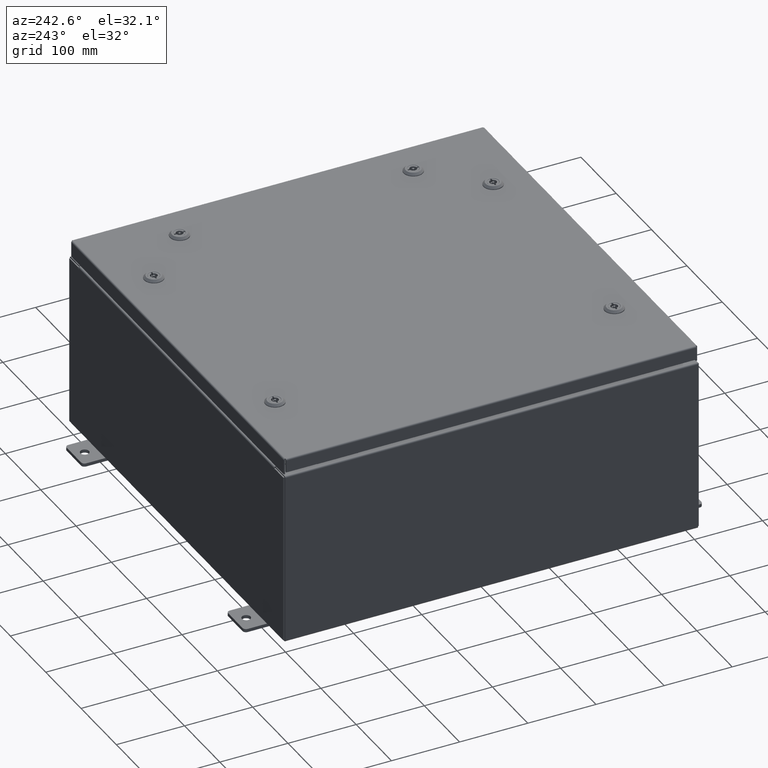
[diagram: clean part render]
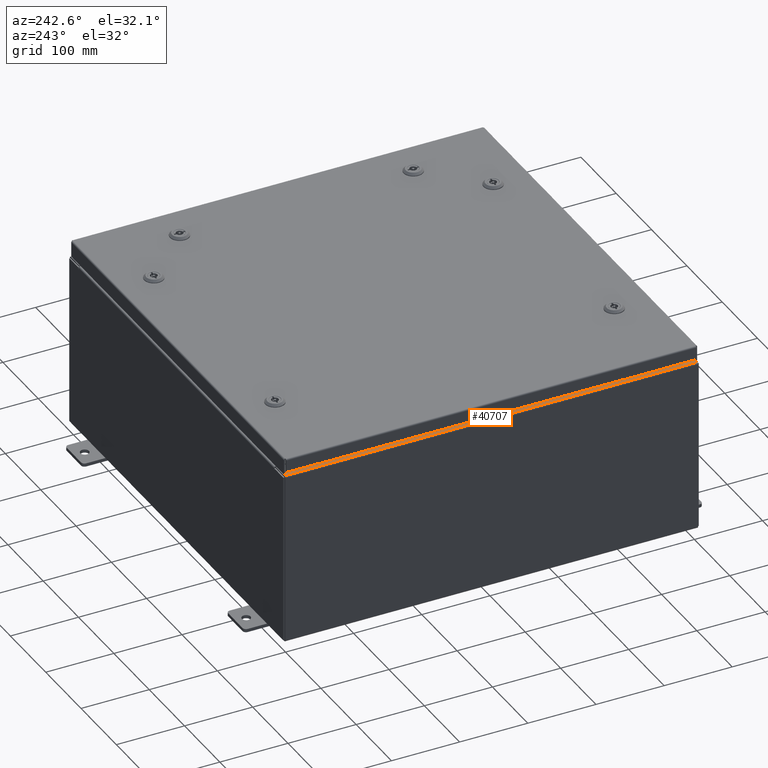
[diagram: same view with one face highlighted and labeled with its STEP entity id]
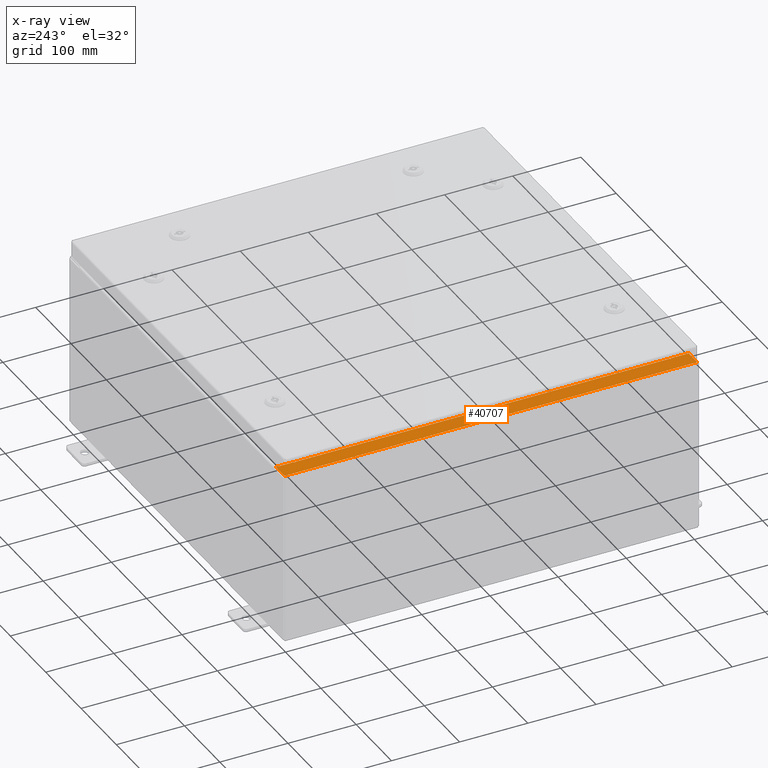
[diagram: x-ray of the same camera — body ghosted, the highlighted face saturated]
A machine part, auxiliary view. The second image highlights one B-rep face of the part: STEP entity #40707.
The next image is the same camera in x-ray: the body ghosted, the highlighted face saturated — about 0% of this face is hidden behind the body in this view.
In plain terms, the highlighted planar face has unit normal (0, 0, -1).
Its self-contained STEP definition (entity closure, byte-faithful):
#17 = AXIS2_PLACEMENT_3D ( 'NONE', #16222, #50489, #21159 ) ;
#266 = CARTESIAN_POINT ( 'NONE',  ( -11.91230000000003700, 11.92529999999999800, 9.925299999999998200 ) ) ;
#984 = VECTOR ( 'NONE', #26434, 39.37007874015748100 ) ;
#1341 = DIRECTION ( 'NONE',  ( -1.000000000000000000, 0.0000000000000000000, 0.0000000000000000000 ) ) ;
#2363 = EDGE_CURVE ( 'NONE', #17779, #60403, #29248, .T. ) ;
#3196 = CARTESIAN_POINT ( 'NONE',  ( -8.919697074175553800E-014, 0.0000000000000000000, 9.925300000000104800 ) ) ;
#3323 = VECTOR ( 'NONE', #40774, 39.37007874015748100 ) ;
#3886 = DIRECTION ( 'NONE',  ( -1.000000000000000000, -4.340572780399910900E-014, 0.0000000000000000000 ) ) ;
#4119 = VECTOR ( 'NONE', #3886, 39.37007874015748100 ) ;
#4289 = CARTESIAN_POINT ( 'NONE',  ( -11.00005000000003900, 10.84374999999999800, 9.925300000000007100 ) ) ;
#4488 = ORIENTED_EDGE ( 'NONE', *, *, #22998, .F. ) ;
#5172 = EDGE_CURVE ( 'NONE', #21323, #18337, #38975, .T. ) ;
#5637 = ORIENTED_EDGE ( 'NONE', *, *, #24836, .F. ) ;
#6042 = DIRECTION ( 'NONE',  ( -1.000000000000000000, -2.052683231367953500E-031, -8.960551024729027700E-015 ) ) ;
#6254 = DIRECTION ( 'NONE',  ( -8.960551024729027700E-015, -0.0000000000000000000, 1.000000000000000000 ) ) ;
#6649 = CARTESIAN_POINT ( 'NONE',  ( -8.919697074175553800E-014, -11.92530000000000000, 9.925300000000104800 ) ) ;
#10707 = VECTOR ( 'NONE', #63411, 39.37007874015748100 ) ;
#11228 = ORIENTED_EDGE ( 'NONE', *, *, #5172, .T. ) ;
#11255 = VERTEX_POINT ( 'NONE', #266 ) ;
#11467 = CARTESIAN_POINT ( 'NONE',  ( -11.91230000000003700, 11.92529999999999800, 9.925299999999998200 ) ) ;
#12405 = EDGE_CURVE ( 'NONE', #32570, #47745, #27171, .T. ) ;
#12605 = ORIENTED_EDGE ( 'NONE', *, *, #2363, .T. ) ;
#13538 = CARTESIAN_POINT ( 'NONE',  ( -11.00005000000003900, 10.84374999999999800, 9.925300000000007100 ) ) ;
#14112 = LINE ( 'NONE', #6649, #984 ) ;
#15324 = VECTOR ( 'NONE', #42841, 39.37007874015748100 ) ;
#16175 = VECTOR ( 'NONE', #25008, 39.37007874015748100 ) ;
#16222 = CARTESIAN_POINT ( 'NONE',  ( -11.00005000000003900, -10.86242500000000000, 9.925300000000007100 ) ) ;
#16762 = ORIENTED_EDGE ( 'NONE', *, *, #17262, .F. ) ;
#17262 = EDGE_CURVE ( 'NONE', #28123, #11255, #21022, .T. ) ;
#17779 = VERTEX_POINT ( 'NONE', #44154 ) ;
#17898 = EDGE_CURVE ( 'NONE', #28123, #21323, #14112, .T. ) ;
#18015 = LINE ( 'NONE', #40338, #31036 ) ;
#18104 = CARTESIAN_POINT ( 'NONE',  ( -10.96270000000003900, 10.84374999999999800, 9.925300000000007100 ) ) ;
#18117 = AXIS2_PLACEMENT_3D ( 'NONE', #3196, #22781, #47375 ) ;
#18334 = CARTESIAN_POINT ( 'NONE',  ( -11.00005000000003900, -10.84375000000000200, 9.925300000000007100 ) ) ;
#18337 = VERTEX_POINT ( 'NONE', #19434 ) ;
#19434 = CARTESIAN_POINT ( 'NONE',  ( -10.94970000000003700, -10.88110000000000200, 9.925300000000007100 ) ) ;
#19560 = CIRCLE ( 'NONE', #44459, 0.01867499999999949400 ) ;
#21022 = LINE ( 'NONE', #11467, #3323 ) ;
#21159 = DIRECTION ( 'NONE',  ( 1.000000000000000000, 0.0000000000000000000, 0.0000000000000000000 ) ) ;
#21323 = VERTEX_POINT ( 'NONE', #48750 ) ;
#22781 = DIRECTION ( 'NONE',  ( 8.960551024729027700E-015, 0.0000000000000000000, -1.000000000000000000 ) ) ;
#22877 = FACE_OUTER_BOUND ( 'NONE', #42497, .T. ) ;
#22914 = ORIENTED_EDGE ( 'NONE', *, *, #45695, .F. ) ;
#22998 = EDGE_CURVE ( 'NONE', #59202, #32400, #41354, .T. ) ;
#23177 = EDGE_CURVE ( 'NONE', #32400, #46204, #25310, .T. ) ;
#24252 = CARTESIAN_POINT ( 'NONE',  ( -10.96270000000003900, 10.84375000000000200, 9.925300000000007100 ) ) ;
#24836 = EDGE_CURVE ( 'NONE', #47745, #18337, #37488, .T. ) ;
#25008 = DIRECTION ( 'NONE',  ( -6.427586101948161900E-031, 1.000000000000000000, -5.759471323234564600E-045 ) ) ;
#25310 = LINE ( 'NONE', #24252, #10707 ) ;
#25375 = CARTESIAN_POINT ( 'NONE',  ( -10.94970000000003700, -7.038013954050144300E-030, 9.925300000000007100 ) ) ;
#25457 = ORIENTED_EDGE ( 'NONE', *, *, #12405, .F. ) ;
#26434 = DIRECTION ( 'NONE',  ( 1.000000000000000000, -1.944692274331607200E-062, 8.960551024729027700E-015 ) ) ;
#26582 = DIRECTION ( 'NONE',  ( 1.000000000000000000, 0.0000000000000000000, 0.0000000000000000000 ) ) ;
#27138 = VECTOR ( 'NONE', #1341, 39.37007874015748100 ) ;
#27171 = CIRCLE ( 'NONE', #17, 0.01867499999999949400 ) ;
#28123 = VERTEX_POINT ( 'NONE', #41821 ) ;
#29248 = LINE ( 'NONE', #25375, #16175 ) ;
#30731 = CARTESIAN_POINT ( 'NONE',  ( -10.96270000000003900, -10.84375000000000200, 9.925300000000007100 ) ) ;
#31036 = VECTOR ( 'NONE', #6042, 39.37007874015748100 ) ;
#32400 = VERTEX_POINT ( 'NONE', #18104 ) ;
#32570 = VERTEX_POINT ( 'NONE', #18334 ) ;
#34951 = ORIENTED_EDGE ( 'NONE', *, *, #43869, .T. ) ;
#35341 = ORIENTED_EDGE ( 'NONE', *, *, #43886, .F. ) ;
#35489 = LINE ( 'NONE', #30731, #27138 ) ;
#35640 = CARTESIAN_POINT ( 'NONE',  ( -11.00005000000003900, 10.86242499999999800, 9.925300000000007100 ) ) ;
#36331 = VERTEX_POINT ( 'NONE', #37433 ) ;
#37433 = CARTESIAN_POINT ( 'NONE',  ( -11.00005000000003900, 10.88109999999999800, 9.925300000000007100 ) ) ;
#37488 = LINE ( 'NONE', #55882, #39034 ) ;
#38975 = LINE ( 'NONE', #62842, #50472 ) ;
#39034 = VECTOR ( 'NONE', #26582, 39.37007874015748100 ) ;
#39760 = CARTESIAN_POINT ( 'NONE',  ( -11.00005000000003900, -10.88110000000000000, 9.925300000000007100 ) ) ;
#40338 = CARTESIAN_POINT ( 'NONE',  ( -8.919697074175553800E-014, 11.92529999999999800, 9.925300000000104800 ) ) ;
#40459 = ORIENTED_EDGE ( 'NONE', *, *, #23177, .F. ) ;
#40556 = DIRECTION ( 'NONE',  ( 1.000000000000000000, 0.0000000000000000000, 0.0000000000000000000 ) ) ;
#40707 = ADVANCED_FACE ( 'NONE', ( #22877 ), #42431, .F. ) ;
#40774 = DIRECTION ( 'NONE',  ( -0.0000000000000000000, 1.000000000000000000, -0.0000000000000000000 ) ) ;
#40853 = ORIENTED_EDGE ( 'NONE', *, *, #62916, .F. ) ;
#41354 = LINE ( 'NONE', #13538, #15324 ) ;
#41821 = CARTESIAN_POINT ( 'NONE',  ( -11.91230000000003700, -11.92530000000000000, 9.925299999999998200 ) ) ;
#42315 = ORIENTED_EDGE ( 'NONE', *, *, #17898, .T. ) ;
#42431 = PLANE ( 'NONE',  #18117 ) ;
#42497 = EDGE_LOOP ( 'NONE', ( #40853, #12605, #34951, #16762, #42315, #11228, #5637, #25457, #22914, #40459, #4488, #35341 ) ) ;
#42841 = DIRECTION ( 'NONE',  ( 1.000000000000000000, 0.0000000000000000000, 0.0000000000000000000 ) ) ;
#43256 = LINE ( 'NONE', #62635, #4119 ) ;
#43869 = EDGE_CURVE ( 'NONE', #60403, #11255, #18015, .T. ) ;
#43886 = EDGE_CURVE ( 'NONE', #36331, #59202, #19560, .T. ) ;
#44154 = CARTESIAN_POINT ( 'NONE',  ( -10.94970000000003700, 10.88110000000000000, 9.925300000000007100 ) ) ;
#44459 = AXIS2_PLACEMENT_3D ( 'NONE', #35640, #6254, #40556 ) ;
#45695 = EDGE_CURVE ( 'NONE', #46204, #32570, #35489, .T. ) ;
#46204 = VERTEX_POINT ( 'NONE', #60981 ) ;
#47375 = DIRECTION ( 'NONE',  ( -1.000000000000000000, 0.0000000000000000000, -8.960551024729027700E-015 ) ) ;
#47745 = VERTEX_POINT ( 'NONE', #39760 ) ;
#48750 = CARTESIAN_POINT ( 'NONE',  ( -10.94970000000003700, -11.92530000000000000, 9.925300000000007100 ) ) ;
#50472 = VECTOR ( 'NONE', #58118, 39.37007874015748100 ) ;
#50489 = DIRECTION ( 'NONE',  ( -8.960551024729027700E-015, -0.0000000000000000000, 1.000000000000000000 ) ) ;
#55882 = CARTESIAN_POINT ( 'NONE',  ( -11.00005000000003900, -10.88110000000000000, 9.925300000000007100 ) ) ;
#58118 = DIRECTION ( 'NONE',  ( -6.427586101948161900E-031, 1.000000000000000000, -5.759471323234564600E-045 ) ) ;
#59202 = VERTEX_POINT ( 'NONE', #4289 ) ;
#60403 = VERTEX_POINT ( 'NONE', #60723 ) ;
#60723 = CARTESIAN_POINT ( 'NONE',  ( -10.94970000000003700, 11.92529999999999800, 9.925300000000007100 ) ) ;
#60981 = CARTESIAN_POINT ( 'NONE',  ( -10.96270000000003900, -10.84375000000000200, 9.925300000000007100 ) ) ;
#62635 = CARTESIAN_POINT ( 'NONE',  ( -10.94970000000003700, 10.88110000000000000, 9.925300000000007100 ) ) ;
#62842 = CARTESIAN_POINT ( 'NONE',  ( -10.94970000000003700, -7.038013954050144300E-030, 9.925300000000007100 ) ) ;
#62916 = EDGE_CURVE ( 'NONE', #17779, #36331, #43256, .T. ) ;
#63411 = DIRECTION ( 'NONE',  ( -0.0000000000000000000, -1.000000000000000000, -0.0000000000000000000 ) ) ;